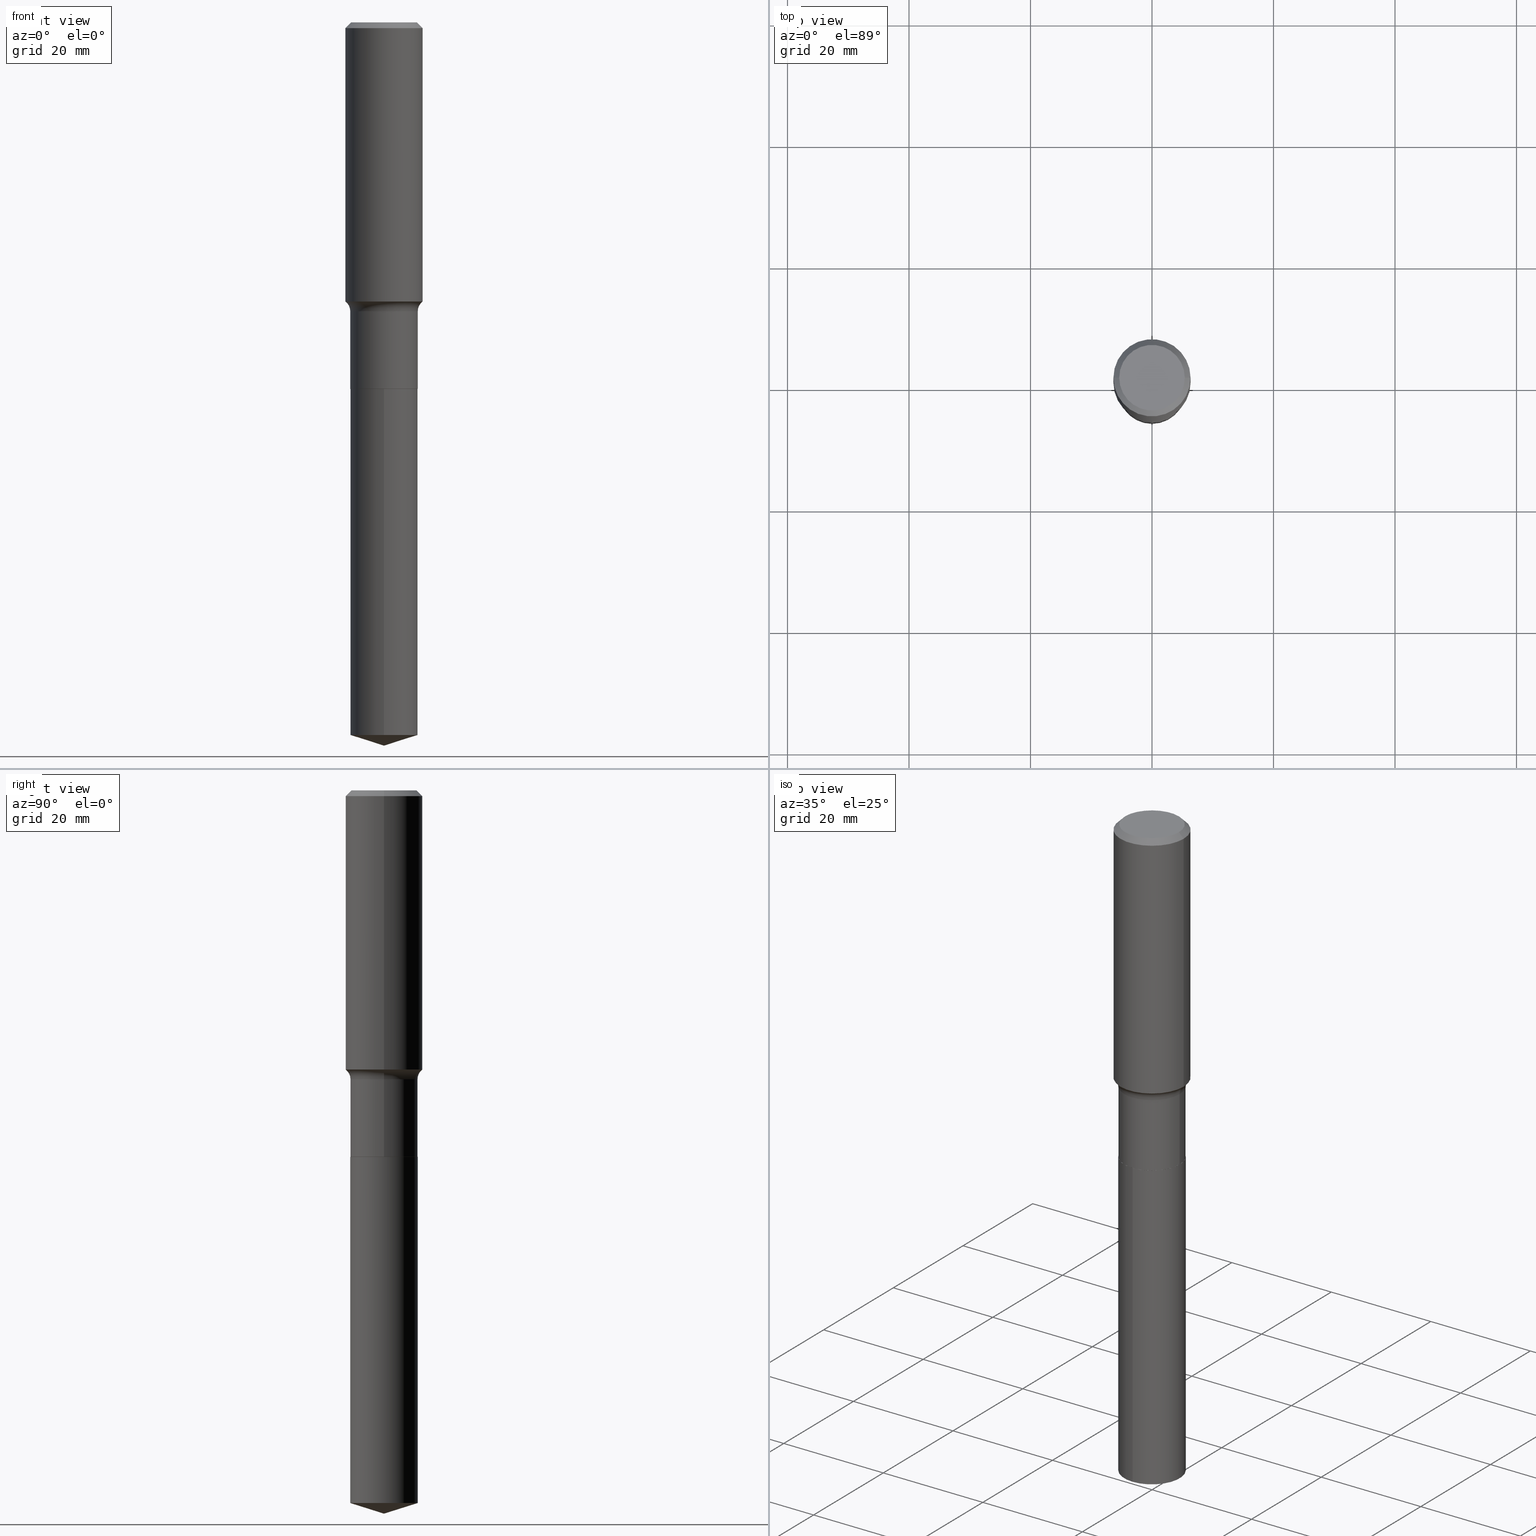
[diagram: canonical four-view strip — front | top / right | iso, engineering-drawing reading convention]
A machine part, canonical four-view strip (front | top / right | iso — engineering-drawing reading convention). The complete STEP part file that produces these views, byte-faithful:
ISO-10303-21;
HEADER;
FILE_DESCRIPTION (( 'STEP AP203' ),
    '1' );
FILE_NAME ('51530.STEP',
    '2024-04-19T12:58:54',
    ( '' ),
    ( '' ),
    'SwSTEP 2.0',
    'SolidWorks 2023',
    '' );
FILE_SCHEMA (( 'CONFIG_CONTROL_DESIGN' ));
ENDSEC;

DATA;
#1 = VERTEX_POINT ( 'NONE', #12 ) ;
#2 = SECURITY_CLASSIFICATION_LEVEL ( 'unclassified' ) ;
#3 = CARTESIAN_POINT ( 'NONE',  ( 0.2182499999999999996, -9.816299784157498742E-15, -2.375000000000000000 ) ) ;
#4 = VECTOR ( 'NONE', #410, 39.37007874015748143 ) ;
#5 = CONICAL_SURFACE ( 'NONE', #194, 0.2500000000000000000, 0.7853981633974450594 ) ;
#6 = PERSON_AND_ORGANIZATION_ROLE ( 'design_supplier' ) ;
#7 = ORIENTED_EDGE ( 'NONE', *, *, #102, .T. ) ;
#8 = EDGE_LOOP ( 'NONE', ( #84, #147, #420, #81 ) ) ;
#9 = APPLICATION_PROTOCOL_DEFINITION ( 'international standard', 'config_control_design', 1994, #204 ) ;
#10 = AXIS2_PLACEMENT_3D ( 'NONE', #103, #63, #215 ) ;
#11 = ORIENTED_EDGE ( 'NONE', *, *, #15, .F. ) ;
#12 = CARTESIAN_POINT ( 'NONE',  ( -1.527523085743812467E-15, -0.2187500000000082989, -2.374999999999999556 ) ) ;
#13 = CARTESIAN_POINT ( 'NONE',  ( 0.2187499999999999445, -1.527523085743870449E-15, 1.066663669705360604E-29 ) ) ;
#14 = DIRECTION ( 'NONE',  ( -2.445468806185136597E-29, 3.491481338843145583E-15, 1.000000000000000000 ) ) ;
#15 = EDGE_CURVE ( 'NONE', #376, #310, #450, .T. ) ;
#16 = ORIENTED_EDGE ( 'NONE', *, *, #326, .T. ) ;
#17 = CIRCLE ( 'NONE', #80, 0.2124999999999999944 ) ;
#18 = DATE_AND_TIME ( #286, #33 ) ;
#19 = AXIS2_PLACEMENT_3D ( 'NONE', #106, #453, #449 ) ;
#20 = DIRECTION ( 'NONE',  ( -2.445468806185136597E-29, 3.491481338843145583E-15, 1.000000000000000000 ) ) ;
#21 = ORIENTED_EDGE ( 'NONE', *, *, #440, .F. ) ;
#22 = CARTESIAN_POINT ( 'NONE',  ( 5.807988414689700538E-29, -8.292268179752471696E-15, -2.375000000000000000 ) ) ;
#23 = LINE ( 'NONE', #364, #231 ) ;
#24 = CARTESIAN_POINT ( 'NONE',  ( 5.807988414689700538E-29, -8.292268179752471696E-15, -2.375000000000000000 ) ) ;
#25 = CLOSED_SHELL ( 'NONE', ( #234, #347, #217, #29, #222, #356, #319, #164, #174, #157, #247, #304 ) ) ;
#26 = FACE_OUTER_BOUND ( 'NONE', #237, .T. ) ;
#27 = LOCAL_TIME ( 8, 58, 54.00000000000000000, #249 ) ;
#28 = FACE_OUTER_BOUND ( 'NONE', #228, .T. ) ;
#29 = ADVANCED_FACE ( 'NONE', ( #276 ), #86, .F. ) ;
#30 = CARTESIAN_POINT ( 'NONE',  ( 5.807988414689700538E-29, -8.292268179752471696E-15, -2.375000000000000000 ) ) ;
#31 = EDGE_CURVE ( 'NONE', #131, #381, #129, .T. ) ;
#32 = CARTESIAN_POINT ( 'NONE',  ( 1.554312234475331569E-15, 0.2187499999999838463, -4.618528389932723854 ) ) ;
#33 = LOCAL_TIME ( 8, 58, 54.00000000000000000, #358 ) ;
#34 = UNCERTAINTY_MEASURE_WITH_UNIT (LENGTH_MEASURE( 1.000000000000000082E-05 ), #344, 'distance_accuracy_value', 'NONE');
#35 = PERSON_AND_ORGANIZATION_ROLE ( 'classification_officer' ) ;
#36 = EDGE_LOOP ( 'NONE', ( #418, #354, #123 ) ) ;
#37 = CALENDAR_DATE ( 2024, 19, 4 ) ;
#38 = FACE_OUTER_BOUND ( 'NONE', #357, .T. ) ;
#39 = ORIENTED_EDGE ( 'NONE', *, *, #195, .F. ) ;
#40 = DATE_AND_TIME ( #37, #100 ) ;
#41 = AXIS2_PLACEMENT_3D ( 'NONE', #490, #219, #460 ) ;
#42 = ORGANIZATION ( 'UNSPECIFIED', 'UNSPECIFIED', '' ) ;
#43 = ORIENTED_EDGE ( 'NONE', *, *, #115, .F. ) ;
#44 = DIRECTION ( 'NONE',  ( -2.445468806185136597E-29, 3.491481338843145583E-15, 1.000000000000000000 ) ) ;
#45 = ORIENTED_EDGE ( 'NONE', *, *, #425, .T. ) ;
#46 = VERTEX_POINT ( 'NONE', #352 ) ;
#47 = APPROVAL ( #133, 'UNSPECIFIED' ) ;
#48 = CIRCLE ( 'NONE', #360, 0.2187499999999999167 ) ;
#49 = CIRCLE ( 'NONE', #466, 0.2187500000000000000 ) ;
#50 = ORIENTED_EDGE ( 'NONE', *, *, #425, .F. ) ;
#51 = SHAPE_DEFINITION_REPRESENTATION ( #70, #441 ) ;
#52 = CARTESIAN_POINT ( 'NONE',  ( 5.806765680286607737E-29, -8.290522439083049403E-15, -2.374500000000000277 ) ) ;
#53 = ORIENTED_EDGE ( 'NONE', *, *, #348, .T. ) ;
#54 = CYLINDRICAL_SURFACE ( 'NONE', #72, 0.2500000000000001110 ) ;
#55 = CIRCLE ( 'NONE', #280, 0.2187500000000000000 ) ;
#56 = VERTEX_POINT ( 'NONE', #430 ) ;
#57 = CIRCLE ( 'NONE', #406, 0.2182499999999999996 ) ;
#58 = SECURITY_CLASSIFICATION ( '', '', #2 ) ;
#59 = CARTESIAN_POINT ( 'NONE',  ( 5.807988414689700538E-29, -8.292268179752471696E-15, -2.375000000000000000 ) ) ;
#60 = DIRECTION ( 'NONE',  ( -2.445468806185136597E-29, 3.491481338843145583E-15, 1.000000000000000000 ) ) ;
#61 = CARTESIAN_POINT ( 'NONE',  ( 0.2124999999999999944, -1.651955437087975937E-15, 6.505936120481282700E-18 ) ) ;
#62 = EDGE_CURVE ( 'NONE', #241, #310, #329, .T. ) ;
#63 = DIRECTION ( 'NONE',  ( -2.445327369194011898E-29, 3.491683884664529466E-15, 1.000000000000000000 ) ) ;
#64 = PERSON ( 'UNSPECIFIED', 'UNSPECIFIED', 'UNSPECIFIED', ('UNSPECIFIED'), ('UNSPECIFIED'), ('UNSPECIFIED') ) ;
#65 = CYLINDRICAL_SURFACE ( 'NONE', #10, 0.2187500000000000000 ) ;
#66 = DIRECTION ( 'NONE',  ( -2.445468806185136597E-29, 3.491481338843145583E-15, 1.000000000000000000 ) ) ;
#67 = EDGE_CURVE ( 'NONE', #46, #301, #209, .T. ) ;
#68 = APPROVAL_ROLE ( '' ) ;
#69 = DIRECTION ( 'NONE',  ( -6.982962677686265133E-15, -1.000000000000000000, 3.746534391310989557E-15 ) ) ;
#70 = PRODUCT_DEFINITION_SHAPE ( 'NONE', 'NONE',  #141 ) ;
#71 = LINE ( 'NONE', #303, #382 ) ;
#72 = AXIS2_PLACEMENT_3D ( 'NONE', #331, #134, #446 ) ;
#73 = CC_DESIGN_PERSON_AND_ORGANIZATION_ASSIGNMENT ( #182, #296, ( #488 ) ) ;
#74 = EDGE_CURVE ( 'NONE', #75, #127, #160, .T. ) ;
#75 = VERTEX_POINT ( 'NONE', #167 ) ;
#76 = FACE_OUTER_BOUND ( 'NONE', #36, .T. ) ;
#77 = ORIENTED_EDGE ( 'NONE', *, *, #345, .T. ) ;
#78 = DIRECTION ( 'NONE',  ( -2.445468806185136877E-29, 3.491481338843145188E-15, 1.000000000000000000 ) ) ;
#79 = ORIENTED_EDGE ( 'NONE', *, *, #110, .F. ) ;
#80 = AXIS2_PLACEMENT_3D ( 'NONE', #480, #90, #367 ) ;
#81 = ORIENTED_EDGE ( 'NONE', *, *, #62, .F. ) ;
#82 = ORIENTED_EDGE ( 'NONE', *, *, #203, .F. ) ;
#83 = DIRECTION ( 'NONE',  ( 1.000000000000000000, -6.982962677686266711E-15, 0.000000000000000000 ) ) ;
#84 = ORIENTED_EDGE ( 'NONE', *, *, #461, .F. ) ;
#85 = CARTESIAN_POINT ( 'NONE',  ( 5.807988414689700538E-29, -8.292268179752471696E-15, -2.375000000000000000 ) ) ;
#86 = TOROIDAL_SURFACE ( 'NONE', #300, 0.2967499999999999027, 0.07799999999999995826 ) ;
#87 = AXIS2_PLACEMENT_3D ( 'NONE', #472, #44, #394 ) ;
#88 = DIRECTION ( 'NONE',  ( -6.659769872151631300E-15, -0.9537169507482265995, 0.3007057995042744514 ) ) ;
#89 = EDGE_CURVE ( 'NONE', #301, #386, #443, .T. ) ;
#90 = DIRECTION ( 'NONE',  ( -2.445468806185136597E-29, 3.491481338843145583E-15, 1.000000000000000000 ) ) ;
#91 = ORIENTED_EDGE ( 'NONE', *, *, #388, .T. ) ;
#92 = DATE_AND_TIME ( #435, #27 ) ;
#93 = CARTESIAN_POINT ( 'NONE',  ( 0.000000000000000000, 0.000000000000000000, 0.000000000000000000 ) ) ;
#94 = CARTESIAN_POINT ( 'NONE',  ( 5.807988414689700538E-29, -8.292268179752471696E-15, -2.375000000000000000 ) ) ;
#95 = EDGE_CURVE ( 'NONE', #301, #1, #169, .T. ) ;
#96 = PERSON_AND_ORGANIZATION ( #64, #42 ) ;
#97 = CARTESIAN_POINT ( 'NONE',  ( -7.955031918821654702E-47, 1.135767727816384474E-32, 3.252968060235159383E-18 ) ) ;
#98 = AXIS2_PLACEMENT_3D ( 'NONE', #366, #330, #246 ) ;
#99 = DIRECTION ( 'NONE',  ( -2.445468806185136597E-29, 3.491481338843145583E-15, 1.000000000000000000 ) ) ;
#100 = LOCAL_TIME ( 8, 58, 54.00000000000000000, #419 ) ;
#101 = DIRECTION ( 'NONE',  ( 1.000000000000000000, -6.982962677686269077E-15, 0.000000000000000000 ) ) ;
#102 = EDGE_CURVE ( 'NONE', #454, #471, #368, .T. ) ;
#103 = CARTESIAN_POINT ( 'NONE',  ( 5.807988414689700538E-29, -8.292268179752471696E-15, -2.375000000000000000 ) ) ;
#104 = FACE_OUTER_BOUND ( 'NONE', #395, .T. ) ;
#105 = AXIS2_PLACEMENT_3D ( 'NONE', #452, #335, #267 ) ;
#106 = CARTESIAN_POINT ( 'NONE',  ( -8.480992311467952822E-28, 1.211010823119422879E-13, 34.68257874015748143 ) ) ;
#107 = APPROVAL_PERSON_ORGANIZATION ( #459, #120, #125 ) ;
#108 = CALENDAR_DATE ( 2024, 19, 4 ) ;
#109 = DIRECTION ( 'NONE',  ( -1.000000000000000000, 6.982962677686266711E-15, 0.000000000000000000 ) ) ;
#110 = EDGE_CURVE ( 'NONE', #263, #131, #23, .T. ) ;
#111 = DIRECTION ( 'NONE',  ( 1.000000000000000000, -6.982962677686266711E-15, 4.876176775795935232E-29 ) ) ;
#112 = EDGE_CURVE ( 'NONE', #226, #263, #17, .T. ) ;
#113 = ORIENTED_EDGE ( 'NONE', *, *, #483, .T. ) ;
#114 = DIRECTION ( 'NONE',  ( -2.445327369194012178E-29, 3.491683884664529466E-15, 1.000000000000000000 ) ) ;
#115 = EDGE_CURVE ( 'NONE', #226, #381, #181, .T. ) ;
#116 = VECTOR ( 'NONE', #88, 39.37007874015748143 ) ;
#117 = VECTOR ( 'NONE', #128, 39.37007874015748143 ) ;
#118 = ORIENTED_EDGE ( 'NONE', *, *, #447, .T. ) ;
#119 = ORIENTED_EDGE ( 'NONE', *, *, #277, .F. ) ;
#120 = APPROVAL ( #121, 'UNSPECIFIED' ) ;
#121 = APPROVAL_STATUS ( 'not_yet_approved' ) ;
#122 = LINE ( 'NONE', #236, #351 ) ;
#123 = ORIENTED_EDGE ( 'NONE', *, *, #412, .F. ) ;
#124 = ORIENTED_EDGE ( 'NONE', *, *, #447, .F. ) ;
#125 = APPROVAL_ROLE ( '' ) ;
#126 = DIRECTION ( 'NONE',  ( 2.445327369194011898E-29, -3.491683884664529466E-15, -1.000000000000000000 ) ) ;
#127 = VERTEX_POINT ( 'NONE', #323 ) ;
#128 = DIRECTION ( 'NONE',  ( -2.445468806185136877E-29, 3.491481338843145188E-15, 1.000000000000000000 ) ) ;
#129 = CIRCLE ( 'NONE', #239, 0.2500000000000000000 ) ;
#130 = CIRCLE ( 'NONE', #457, 0.2187500000000000000 ) ;
#131 = VERTEX_POINT ( 'NONE', #256 ) ;
#132 = EDGE_CURVE ( 'NONE', #310, #376, #48, .T. ) ;
#133 = APPROVAL_STATUS ( 'not_yet_approved' ) ;
#134 = DIRECTION ( 'NONE',  ( -2.445468806185136597E-29, 3.491481338843145583E-15, 1.000000000000000000 ) ) ;
#135 = VERTEX_POINT ( 'NONE', #439 ) ;
#136 = APPROVAL_DATE_TIME ( #92, #47 ) ;
#137 = FACE_OUTER_BOUND ( 'NONE', #244, .T. ) ;
#138 = CARTESIAN_POINT ( 'NONE',  ( 0.2967499999999999027, -8.607898092783884274E-15, -1.871900000000000341 ) ) ;
#139 = APPROVAL_ROLE ( '' ) ;
#140 = DIRECTION ( 'NONE',  ( 2.438088387897960049E-29, -3.491481338843145188E-15, -1.000000000000000000 ) ) ;
#141 = PRODUCT_DEFINITION ( 'UNKNOWN', '', #488, #415 ) ;
#142 = DIRECTION ( 'NONE',  ( -2.445468806185136597E-29, 3.491481338843145583E-15, 1.000000000000000000 ) ) ;
#143 = DIRECTION ( 'NONE',  ( -6.982962677686265922E-15, -1.000000000000000000, 3.500519750498711532E-15 ) ) ;
#144 = VECTOR ( 'NONE', #476, 39.37007874015748143 ) ;
#145 = CARTESIAN_POINT ( 'NONE',  ( 9.170508023194322494E-31, -1.309305502066188320E-16, -0.03750000000000024841 ) ) ;
#146 = AXIS2_PLACEMENT_3D ( 'NONE', #353, #279, #83 ) ;
#147 = ORIENTED_EDGE ( 'NONE', *, *, #195, .T. ) ;
#148 = COORDINATED_UNIVERSAL_TIME_OFFSET ( 5, 0, .BEHIND. ) ;
#149 = DIRECTION ( 'NONE',  ( -2.445468806185136597E-29, 3.491481338843145583E-15, 1.000000000000000000 ) ) ;
#150 = ORIENTED_EDGE ( 'NONE', *, *, #62, .T. ) ;
#151 = CARTESIAN_POINT ( 'NONE',  ( 0.2187499999999999167, -8.063227003924354650E-15, -1.871900000000000341 ) ) ;
#152 = AXIS2_PLACEMENT_3D ( 'NONE', #59, #173, #101 ) ;
#153 = LOCAL_TIME ( 8, 58, 54.00000000000000000, #148 ) ;
#154 = ORIENTED_EDGE ( 'NONE', *, *, #309, .T. ) ;
#155 = PERSON_AND_ORGANIZATION ( #64, #42 ) ;
#156 = EDGE_LOOP ( 'NONE', ( #39, #124, #150, #248 ) ) ;
#157 = ADVANCED_FACE ( 'NONE', ( #26 ), #397, .F. ) ;
#158 = ORIENTED_EDGE ( 'NONE', *, *, #31, .F. ) ;
#159 = PLANE ( 'NONE',  #161 ) ;
#160 = CIRCLE ( 'NONE', #475, 0.2187500000000000000 ) ;
#161 = AXIS2_PLACEMENT_3D ( 'NONE', #85, #126, #238 ) ;
#162 = DIRECTION ( 'NONE',  ( 1.000000000000000000, -6.982962677686268288E-15, 4.883557194083113462E-29 ) ) ;
#163 = CC_DESIGN_PERSON_AND_ORGANIZATION_ASSIGNMENT ( #155, #35, ( #58 ) ) ;
#164 = ADVANCED_FACE ( 'NONE', ( #180 ), #54, .T. ) ;
#165 = CARTESIAN_POINT ( 'NONE',  ( 1.146247204309693163E-28, -1.636726820936498446E-14, -4.687500000000000000 ) ) ;
#166 = DIRECTION ( 'NONE',  ( -2.445468806185136597E-29, 3.491481338843145583E-15, 1.000000000000000000 ) ) ;
#167 = CARTESIAN_POINT ( 'NONE',  ( -0.2187500000000000000, -5.858800944156548632E-15, -2.374500000000000277 ) ) ;
#168 = LOCAL_TIME ( 8, 58, 54.00000000000000000, #428 ) ;
#169 = LINE ( 'NONE', #315, #144 ) ;
#170 = DIRECTION ( 'NONE',  ( 1.000000000000000000, -6.982962677686269077E-15, 0.000000000000000000 ) ) ;
#171 = ORIENTED_EDGE ( 'NONE', *, *, #440, .T. ) ;
#172 = PERSON_AND_ORGANIZATION ( #64, #42 ) ;
#173 = DIRECTION ( 'NONE',  ( -2.445468806185136597E-29, 3.491481338843145583E-15, 1.000000000000000000 ) ) ;
#174 = ADVANCED_FACE ( 'NONE', ( #28 ), #272, .T. ) ;
#175 = DIRECTION ( 'NONE',  ( 0.7071067811865452413, -7.319954787623248157E-15, -0.7071067811865497932 ) ) ;
#176 = DIRECTION ( 'NONE',  ( -2.445468806185136597E-29, 3.491481338843145583E-15, 1.000000000000000000 ) ) ;
#177 = AXIS2_PLACEMENT_3D ( 'NONE', #403, #359, #289 ) ;
#178 = CC_DESIGN_PERSON_AND_ORGANIZATION_ASSIGNMENT ( #342, #424, ( #187 ) ) ;
#179 = AXIS2_PLACEMENT_3D ( 'NONE', #191, #66, #111 ) ;
#180 = FACE_OUTER_BOUND ( 'NONE', #362, .T. ) ;
#181 = LINE ( 'NONE', #484, #184 ) ;
#182 = PERSON_AND_ORGANIZATION ( #64, #42 ) ;
#183 = FACE_OUTER_BOUND ( 'NONE', #270, .T. ) ;
#184 = VECTOR ( 'NONE', #479, 39.37007874015748143 ) ;
#185 = CARTESIAN_POINT ( 'NONE',  ( 1.146314975992320593E-28, -1.636630611671340963E-14, -4.687500000000000000 ) ) ;
#186 = CC_DESIGN_DATE_AND_TIME_ASSIGNMENT ( #268, #260, ( #58 ) ) ;
#187 = PRODUCT ( '51530', '51530', '', ( #314 ) ) ;
#188 = LINE ( 'NONE', #227, #482 ) ;
#189 = ADVANCED_FACE ( 'NONE', ( #104 ), #201, .T. ) ;
#190 = ORIENTED_EDGE ( 'NONE', *, *, #31, .T. ) ;
#191 = CARTESIAN_POINT ( 'NONE',  ( 0.000000000000000000, 0.000000000000000000, 0.000000000000000000 ) ) ;
#192 = EDGE_LOOP ( 'NONE', ( #379, #235, #119, #469 ) ) ;
#193 = DIRECTION ( 'NONE',  ( 6.776566513254256560E-15, 0.9537169507482285979, 0.3007057995042677900 ) ) ;
#194 = AXIS2_PLACEMENT_3D ( 'NONE', #145, #377, #109 ) ;
#195 = EDGE_CURVE ( 'NONE', #135, #376, #390, .T. ) ;
#196 = ORIENTED_EDGE ( 'NONE', *, *, #336, .F. ) ;
#197 = DIRECTION ( 'NONE',  ( 1.000000000000000000, -6.982962677686268288E-15, 0.000000000000000000 ) ) ;
#198 = ORIENTED_EDGE ( 'NONE', *, *, #277, .T. ) ;
#199 = CARTESIAN_POINT ( 'NONE',  ( 4.424984176209189832E-29, -6.317704661304503817E-15, -1.809462531281289310 ) ) ;
#200 = ORIENTED_EDGE ( 'NONE', *, *, #309, .F. ) ;
#201 = CONICAL_SURFACE ( 'NONE', #220, 124.8659371009148060, 1.265363707695891016 ) ;
#202 = CIRCLE ( 'NONE', #146, 0.2500000000000000000 ) ;
#203 = EDGE_CURVE ( 'NONE', #471, #454, #57, .T. ) ;
#204 = APPLICATION_CONTEXT ( 'configuration controlled 3d designs of mechanical parts and assemblies' ) ;
#205 = CARTESIAN_POINT ( 'NONE',  ( 4.577673058297957768E-29, -6.535703918180485385E-15, -1.871900000000000341 ) ) ;
#206 = APPROVAL_DATE_TIME ( #423, #120 ) ;
#207 = LENGTH_MEASURE_WITH_UNIT ( LENGTH_MEASURE( 0.02539999999999999897 ), #269 );
#208 = DIRECTION ( 'NONE',  ( 1.000000000000000000, -6.982962677686262766E-15, 0.000000000000000000 ) ) ;
#209 = LINE ( 'NONE', #165, #116 ) ;
#210 = DIRECTION ( 'NONE',  ( -2.445327369194011898E-29, 3.491683884664529466E-15, 1.000000000000000000 ) ) ;
#211 = DIRECTION ( 'NONE',  ( 1.000000000000000000, -6.982962677686265922E-15, 0.000000000000000000 ) ) ;
#212 = DIRECTION ( 'NONE',  ( 1.000000000000000000, -6.982962677686265922E-15, 0.000000000000000000 ) ) ;
#213 = DIRECTION ( 'NONE',  ( 1.000000000000000000, -6.982962677686269077E-15, 0.000000000000000000 ) ) ;
#214 = CARTESIAN_POINT ( 'NONE',  ( 5.807988414689700538E-29, -8.292268179752471696E-15, -2.375000000000000000 ) ) ;
#215 = DIRECTION ( 'NONE',  ( -6.982962677686265133E-15, -1.000000000000000000, 3.746534391310989557E-15 ) ) ;
#216 = CARTESIAN_POINT ( 'NONE',  ( -8.480992311467952822E-28, 1.211010823119422879E-13, 34.68257874015748143 ) ) ;
#217 = ADVANCED_FACE ( 'NONE', ( #284 ), #404, .T. ) ;
#218 = LINE ( 'NONE', #3, #4 ) ;
#219 = DIRECTION ( 'NONE',  ( -2.445468806185136597E-29, 3.491481338843145583E-15, 1.000000000000000000 ) ) ;
#220 = AXIS2_PLACEMENT_3D ( 'NONE', #216, #210, #143 ) ;
#221 = CC_DESIGN_APPROVAL ( #120, ( #58 ) ) ;
#222 = ADVANCED_FACE ( 'NONE', ( #477 ), #325, .T. ) ;
#223 = DIRECTION ( 'NONE',  ( -2.445468806185136877E-29, 3.491481338843145188E-15, 1.000000000000000000 ) ) ;
#224 = ORIENTED_EDGE ( 'NONE', *, *, #74, .T. ) ;
#225 = DIRECTION ( 'NONE',  ( -2.445468806185136877E-29, 3.491481338843145188E-15, 1.000000000000000000 ) ) ;
#226 = VERTEX_POINT ( 'NONE', #448 ) ;
#227 = CARTESIAN_POINT ( 'NONE',  ( 0.2500000000000001110, -1.745740669421567467E-15, 1.219044193948984509E-29 ) ) ;
#228 = EDGE_LOOP ( 'NONE', ( #79, #312, #274, #285 ) ) ;
#229 = APPROVAL_DATE_TIME ( #40, #243 ) ;
#230 = DIRECTION ( 'NONE',  ( 1.000000000000000000, -6.982962677686268288E-15, 0.000000000000000000 ) ) ;
#231 = VECTOR ( 'NONE', #175, 39.37007874015748143 ) ;
#232 = AXIS2_PLACEMENT_3D ( 'NONE', #275, #385, #308 ) ;
#233 = EDGE_LOOP ( 'NONE', ( #91, #398, #346, #21 ) ) ;
#234 = ADVANCED_FACE ( 'NONE', ( #137 ), #258, .T. ) ;
#235 = ORIENTED_EDGE ( 'NONE', *, *, #392, .T. ) ;
#236 = CARTESIAN_POINT ( 'NONE',  ( -0.2182499999999999996, -6.741508658956053437E-15, -2.375000000000000000 ) ) ;
#237 = EDGE_LOOP ( 'NONE', ( #393, #45 ) ) ;
#238 = DIRECTION ( 'NONE',  ( 6.982962677686265922E-15, 1.000000000000000000, -3.491683884664529466E-15 ) ) ;
#239 = AXIS2_PLACEMENT_3D ( 'NONE', #478, #14, #278 ) ;
#240 = VECTOR ( 'NONE', #225, 39.37007874015748143 ) ;
#241 = VERTEX_POINT ( 'NONE', #257 ) ;
#242 =( NAMED_UNIT ( * ) SI_UNIT ( $, .STERADIAN. ) SOLID_ANGLE_UNIT ( ) );
#243 = APPROVAL ( #261, 'UNSPECIFIED' ) ;
#244 = EDGE_LOOP ( 'NONE', ( #7, #113, #413, #200 ) ) ;
#245 = PERSON_AND_ORGANIZATION ( #64, #42 ) ;
#246 = DIRECTION ( 'NONE',  ( -1.000000000000000000, 6.982962677686266711E-15, 0.000000000000000000 ) ) ;
#247 = ADVANCED_FACE ( 'NONE', ( #287 ), #436, .F. ) ;
#248 = ORIENTED_EDGE ( 'NONE', *, *, #132, .T. ) ;
#249 = COORDINATED_UNIVERSAL_TIME_OFFSET ( 5, 0, .BEHIND. ) ;
#250 = CARTESIAN_POINT ( 'NONE',  ( 0.000000000000000000, 0.000000000000000000, 0.000000000000000000 ) ) ;
#251 = AXIS2_PLACEMENT_3D ( 'NONE', #250, #176, #292 ) ;
#252 = CC_DESIGN_SECURITY_CLASSIFICATION ( #58, ( #488 ) ) ;
#253 = DIRECTION ( 'NONE',  ( 1.000000000000000000, -6.982962677686274599E-15, 0.000000000000000000 ) ) ;
#254 = DIRECTION ( 'NONE',  ( 1.000000000000000000, -6.982962677686265922E-15, 4.876176775795935793E-29 ) ) ;
#255 = CC_DESIGN_PERSON_AND_ORGANIZATION_ASSIGNMENT ( #489, #6, ( #488 ) ) ;
#256 = CARTESIAN_POINT ( 'NONE',  ( 0.2500000000000000000, -1.876671219628185362E-15, -0.03750000000000024841 ) ) ;
#257 = CARTESIAN_POINT ( 'NONE',  ( 0.2500000000000001665, -8.063445330726071283E-15, -1.809462531281289310 ) ) ;
#258 = CONICAL_SURFACE ( 'NONE', #152, 0.2182499999999999996, 0.7853981633975507526 ) ;
#259 = CARTESIAN_POINT ( 'NONE',  ( -0.2187499999999999167, -5.858800944156548632E-15, -1.871900000000000341 ) ) ;
#260 = DATE_TIME_ROLE ( 'classification_date' ) ;
#261 = APPROVAL_STATUS ( 'not_yet_approved' ) ;
#262 = AXIS2_PLACEMENT_3D ( 'NONE', #97, #140, #371 ) ;
#263 = VERTEX_POINT ( 'NONE', #61 ) ;
#264 = CIRCLE ( 'NONE', #87, 0.2124999999999999944 ) ;
#265 = LINE ( 'NONE', #372, #240 ) ;
#266 = EDGE_LOOP ( 'NONE', ( #118, #317, #158, #343 ) ) ;
#267 = DIRECTION ( 'NONE',  ( 1.000000000000000000, -6.982962677686268288E-15, 4.883557194083113462E-29 ) ) ;
#268 = DATE_AND_TIME ( #108, #153 ) ;
#269 =( LENGTH_UNIT ( ) NAMED_UNIT ( * ) SI_UNIT ( $, .METRE. ) );
#270 = EDGE_LOOP ( 'NONE', ( #50, #458, #190, #43 ) ) ;
#271 = AXIS2_PLACEMENT_3D ( 'NONE', #93, #444, #400 ) ;
#272 = CONICAL_SURFACE ( 'NONE', #98, 0.2500000000000000000, 0.7853981633974450594 ) ;
#273 = AXIS2_PLACEMENT_3D ( 'NONE', #465, #166, #230 ) ;
#274 = ORIENTED_EDGE ( 'NONE', *, *, #115, .T. ) ;
#275 = CARTESIAN_POINT ( 'NONE',  ( 0.000000000000000000, 0.000000000000000000, 0.000000000000000000 ) ) ;
#276 = FACE_OUTER_BOUND ( 'NONE', #8, .T. ) ;
#277 = EDGE_CURVE ( 'NONE', #1, #56, #55, .T. ) ;
#278 = DIRECTION ( 'NONE',  ( 1.000000000000000000, -6.982962677686266711E-15, 0.000000000000000000 ) ) ;
#279 = DIRECTION ( 'NONE',  ( -2.445468806185136597E-29, 3.491481338843145583E-15, 1.000000000000000000 ) ) ;
#280 = AXIS2_PLACEMENT_3D ( 'NONE', #214, #481, #405 ) ;
#281 = CIRCLE ( 'NONE', #451, 0.2500000000000002220 ) ;
#282 = CARTESIAN_POINT ( 'NONE',  ( 4.577673058297957768E-29, -6.535703918180485385E-15, -1.871900000000000341 ) ) ;
#283 = ADVANCED_FACE ( 'NONE', ( #291 ), #65, .T. ) ;
#284 = FACE_OUTER_BOUND ( 'NONE', #266, .T. ) ;
#285 = ORIENTED_EDGE ( 'NONE', *, *, #470, .T. ) ;
#286 = CALENDAR_DATE ( 2024, 19, 4 ) ;
#287 = FACE_OUTER_BOUND ( 'NONE', #467, .T. ) ;
#288 = ORIENTED_EDGE ( 'NONE', *, *, #412, .T. ) ;
#289 = DIRECTION ( 'NONE',  ( -1.000000000000000000, 7.105427357601001859E-15, 0.000000000000000000 ) ) ;
#290 = APPROVAL_PERSON_ORGANIZATION ( #172, #47, #139 ) ;
#291 = FACE_OUTER_BOUND ( 'NONE', #192, .T. ) ;
#292 = DIRECTION ( 'NONE',  ( 1.000000000000000000, -6.982962677686266711E-15, 4.876176775795935232E-29 ) ) ;
#293 = DIRECTION ( 'NONE',  ( -2.445327369194011898E-29, 3.491683884664529466E-15, 1.000000000000000000 ) ) ;
#294 = AXIS2_PLACEMENT_3D ( 'NONE', #437, #349, #474 ) ;
#295 = FACE_OUTER_BOUND ( 'NONE', #156, .T. ) ;
#296 = PERSON_AND_ORGANIZATION_ROLE ( 'creator' ) ;
#297 = DIRECTION ( 'NONE',  ( -2.445327369194011898E-29, 3.491683884664529466E-15, 1.000000000000000000 ) ) ;
#298 = ORIENTED_EDGE ( 'NONE', *, *, #102, .F. ) ;
#299 = CARTESIAN_POINT ( 'NONE',  ( 1.554312234475276743E-15, 0.2187499999999917011, -2.375000000000000888 ) ) ;
#300 = AXIS2_PLACEMENT_3D ( 'NONE', #205, #99, #162 ) ;
#301 = VERTEX_POINT ( 'NONE', #334 ) ;
#302 = CC_DESIGN_APPROVAL ( #243, ( #488 ) ) ;
#303 = CARTESIAN_POINT ( 'NONE',  ( -0.2187499999999999445, 1.554312234475218762E-15, -1.076017050993260482E-29 ) ) ;
#304 = ADVANCED_FACE ( 'NONE', ( #333 ), #339, .T. ) ;
#305 = MANIFOLD_SOLID_BREP ( 'Body-Move/Copy2[2]', #25 ) ;
#306 = MANIFOLD_SOLID_BREP ( 'Body-Move/Copy2[1]', #487 ) ;
#307 = ORIENTED_EDGE ( 'NONE', *, *, #470, .F. ) ;
#308 = DIRECTION ( 'NONE',  ( 1.000000000000000000, 0.000000000000000000, 0.000000000000000000 ) ) ;
#309 = EDGE_CURVE ( 'NONE', #454, #127, #218, .T. ) ;
#310 = VERTEX_POINT ( 'NONE', #151 ) ;
#311 = LINE ( 'NONE', #13, #117 ) ;
#312 = ORIENTED_EDGE ( 'NONE', *, *, #112, .F. ) ;
#313 = AXIS2_PLACEMENT_3D ( 'NONE', #282, #324, #211 ) ;
#314 = MECHANICAL_CONTEXT ( 'NONE', #204, 'mechanical' ) ;
#315 = CARTESIAN_POINT ( 'NONE',  ( -1.527523085743812467E-15, -0.2187500000000082989, -2.374999999999999556 ) ) ;
#316 = DIRECTION ( 'NONE',  ( -2.445468806185136597E-29, 3.491481338843145583E-15, 1.000000000000000000 ) ) ;
#317 = ORIENTED_EDGE ( 'NONE', *, *, #402, .T. ) ;
#318 = DIRECTION ( 'NONE',  ( -6.982962677686265133E-15, -1.000000000000000000, 2.497689594207326371E-15 ) ) ;
#319 = ADVANCED_FACE ( 'NONE', ( #295 ), #320, .F. ) ;
#320 = TOROIDAL_SURFACE ( 'NONE', #105, 0.2967499999999999027, 0.07799999999999995826 ) ;
#321 = APPROVAL_PERSON_ORGANIZATION ( #96, #243, #68 ) ;
#322 = ORIENTED_EDGE ( 'NONE', *, *, #348, .F. ) ;
#323 = CARTESIAN_POINT ( 'NONE',  ( 0.2187500000000000000, -9.818045524826919457E-15, -2.374500000000000277 ) ) ;
#324 = DIRECTION ( 'NONE',  ( -2.445468806185136597E-29, 3.491481338843145583E-15, 1.000000000000000000 ) ) ;
#325 = CYLINDRICAL_SURFACE ( 'NONE', #251, 0.2187499999999999445 ) ;
#326 = EDGE_CURVE ( 'NONE', #46, #386, #417, .T. ) ;
#327 = DIRECTION ( 'NONE',  ( -2.445468806185136597E-29, 3.491481338843145583E-15, 1.000000000000000000 ) ) ;
#328 = CARTESIAN_POINT ( 'NONE',  ( 4.577673058297957768E-29, -6.535703918180485385E-15, -1.871900000000000341 ) ) ;
#329 = CIRCLE ( 'NONE', #456, 0.07799999999999995826 ) ;
#330 = DIRECTION ( 'NONE',  ( 2.445468806185136597E-29, -3.491481338843145583E-15, -1.000000000000000000 ) ) ;
#331 = CARTESIAN_POINT ( 'NONE',  ( 0.000000000000000000, 0.000000000000000000, 0.000000000000000000 ) ) ;
#332 = ADVANCED_FACE ( 'NONE', ( #38 ), #409, .T. ) ;
#333 = FACE_OUTER_BOUND ( 'NONE', #464, .T. ) ;
#334 = CARTESIAN_POINT ( 'NONE',  ( -1.527523085743757444E-15, -0.2187500000000160705, -4.618528389932722966 ) ) ;
#335 = DIRECTION ( 'NONE',  ( -2.445468806185136597E-29, 3.491481338843145583E-15, 1.000000000000000000 ) ) ;
#336 = EDGE_CURVE ( 'NONE', #75, #376, #71, .T. ) ;
#337 = ORIENTED_EDGE ( 'NONE', *, *, #74, .F. ) ;
#338 = FACE_OUTER_BOUND ( 'NONE', #340, .T. ) ;
#339 = CONICAL_SURFACE ( 'NONE', #41, 0.2182499999999999996, 0.7853981633975507526 ) ;
#340 = EDGE_LOOP ( 'NONE', ( #196, #224, #171, #11 ) ) ;
#341 = AXIS2_PLACEMENT_3D ( 'NONE', #30, #293, #69 ) ;
#342 = PERSON_AND_ORGANIZATION ( #64, #42 ) ;
#343 = ORIENTED_EDGE ( 'NONE', *, *, #345, .F. ) ;
#344 =( CONVERSION_BASED_UNIT ( 'INCH', #207 ) LENGTH_UNIT ( ) NAMED_UNIT ( #426 ) );
#345 = EDGE_CURVE ( 'NONE', #241, #131, #188, .T. ) ;
#346 = ORIENTED_EDGE ( 'NONE', *, *, #132, .F. ) ;
#347 = ADVANCED_FACE ( 'NONE', ( #183 ), #5, .T. ) ;
#348 = EDGE_CURVE ( 'NONE', #56, #1, #49, .T. ) ;
#349 = DIRECTION ( 'NONE',  ( -2.445327369194011898E-29, 3.491683884664529466E-15, 1.000000000000000000 ) ) ;
#350 = AXIS2_PLACEMENT_3D ( 'NONE', #94, #327, #213 ) ;
#351 = VECTOR ( 'NONE', #432, 39.37007874015748143 ) ;
#352 = CARTESIAN_POINT ( 'NONE',  ( 1.146247204309693163E-28, -1.636726820936498446E-14, -4.687500000000000000 ) ) ;
#353 = CARTESIAN_POINT ( 'NONE',  ( 9.170508023194322494E-31, -1.309305502066188320E-16, -0.03750000000000024841 ) ) ;
#354 = ORIENTED_EDGE ( 'NONE', *, *, #67, .T. ) ;
#355 = APPLICATION_PROTOCOL_DEFINITION ( 'international standard', 'config_control_design', 1994, #399 ) ;
#356 = ADVANCED_FACE ( 'NONE', ( #338 ), #414, .T. ) ;
#357 = EDGE_LOOP ( 'NONE', ( #416, #288, #389, #322 ) ) ;
#358 = COORDINATED_UNIVERSAL_TIME_OFFSET ( 5, 0, .BEHIND. ) ;
#359 = DIRECTION ( 'NONE',  ( 7.105427357601001859E-15, 1.000000000000000000, -3.491481338843145583E-15 ) ) ;
#360 = AXIS2_PLACEMENT_3D ( 'NONE', #328, #142, #212 ) ;
#361 = CIRCLE ( 'NONE', #273, 0.2500000000000002220 ) ;
#362 = EDGE_LOOP ( 'NONE', ( #491, #401, #77, #307 ) ) ;
#363 = DIRECTION ( 'NONE',  ( -2.438088387897960049E-29, 3.491481338843145188E-15, 1.000000000000000000 ) ) ;
#364 = CARTESIAN_POINT ( 'NONE',  ( 0.2500000000000000000, -1.846055049649501575E-15, -0.03750000000000024841 ) ) ;
#365 = ADVANCED_FACE ( 'NONE', ( #76 ), #433, .T. ) ;
#366 = CARTESIAN_POINT ( 'NONE',  ( 9.170508023194322494E-31, -1.309305502066188320E-16, -0.03750000000000024841 ) ) ;
#367 = DIRECTION ( 'NONE',  ( 1.000000000000000000, -6.982962677686266711E-15, 4.876376119033268190E-29 ) ) ;
#368 = CIRCLE ( 'NONE', #350, 0.2182499999999999996 ) ;
#369 = PRODUCT_RELATED_PRODUCT_CATEGORY ( 'detail', '', ( #187 ) ) ;
#370 = AXIS2_PLACEMENT_3D ( 'NONE', #486, #463, #318 ) ;
#371 = DIRECTION ( 'NONE',  ( -1.000000000000000000, 6.982962677686265922E-15, -4.876176775795935793E-29 ) ) ;
#372 = CARTESIAN_POINT ( 'NONE',  ( -0.2500000000000001110, 1.776356839400251254E-15, -1.229733772563727006E-29 ) ) ;
#373 = CARTESIAN_POINT ( 'NONE',  ( -0.2500000000000000000, -1.447960766355309800E-15, -0.03750000000000024841 ) ) ;
#374 = CIRCLE ( 'NONE', #370, 0.2187500000000000000 ) ;
#375 = CARTESIAN_POINT ( 'NONE',  ( 5.806765680286607737E-29, -8.290522439083049403E-15, -2.374500000000000277 ) ) ;
#376 = VERTEX_POINT ( 'NONE', #259 ) ;
#377 = DIRECTION ( 'NONE',  ( 2.445468806185136597E-29, -3.491481338843145583E-15, -1.000000000000000000 ) ) ;
#378 = CC_DESIGN_DATE_AND_TIME_ASSIGNMENT ( #18, #438, ( #141 ) ) ;
#379 = ORIENTED_EDGE ( 'NONE', *, *, #89, .T. ) ;
#380 = VECTOR ( 'NONE', #193, 39.37007874015748143 ) ;
#381 = VERTEX_POINT ( 'NONE', #373 ) ;
#382 = VECTOR ( 'NONE', #78, 39.37007874015748143 ) ;
#383 = CARTESIAN_POINT ( 'NONE',  ( 0.2182499999999999996, -9.816299784157498742E-15, -2.375000000000000000 ) ) ;
#384 = ORIENTED_EDGE ( 'NONE', *, *, #89, .F. ) ;
#385 = DIRECTION ( 'NONE',  ( 0.000000000000000000, 0.000000000000000000, 1.000000000000000000 ) ) ;
#386 = VERTEX_POINT ( 'NONE', #32 ) ;
#387 = CARTESIAN_POINT ( 'NONE',  ( -0.2182499999999999996, -6.738859431781942236E-15, -2.375000000000000000 ) ) ;
#388 = EDGE_CURVE ( 'NONE', #127, #75, #130, .T. ) ;
#389 = ORIENTED_EDGE ( 'NONE', *, *, #95, .T. ) ;
#390 = CIRCLE ( 'NONE', #177, 0.07799999999999995826 ) ;
#391 = FACE_OUTER_BOUND ( 'NONE', #442, .T. ) ;
#392 = EDGE_CURVE ( 'NONE', #386, #56, #408, .T. ) ;
#393 = ORIENTED_EDGE ( 'NONE', *, *, #112, .T. ) ;
#394 = DIRECTION ( 'NONE',  ( 1.000000000000000000, -6.982962677686266711E-15, 4.876376119033268190E-29 ) ) ;
#395 = EDGE_LOOP ( 'NONE', ( #422, #16, #384 ) ) ;
#396 = PERSON_AND_ORGANIZATION_ROLE ( 'creator' ) ;
#397 = PLANE ( 'NONE',  #262 ) ;
#398 = ORIENTED_EDGE ( 'NONE', *, *, #336, .T. ) ;
#399 = APPLICATION_CONTEXT ( 'configuration controlled 3d designs of mechanical parts and assemblies' ) ;
#400 = DIRECTION ( 'NONE',  ( 1.000000000000000000, -6.982962677686266711E-15, 4.876176775795935793E-29 ) ) ;
#401 = ORIENTED_EDGE ( 'NONE', *, *, #461, .T. ) ;
#402 = EDGE_CURVE ( 'NONE', #135, #381, #265, .T. ) ;
#403 = CARTESIAN_POINT ( 'NONE',  ( -0.2967499999999999027, -4.427168349812388380E-15, -1.871900000000000341 ) ) ;
#404 = CYLINDRICAL_SURFACE ( 'NONE', #271, 0.2500000000000001110 ) ;
#405 = DIRECTION ( 'NONE',  ( -6.982962677686265133E-15, -1.000000000000000000, 3.746534391310989557E-15 ) ) ;
#406 = AXIS2_PLACEMENT_3D ( 'NONE', #22, #20, #170 ) ;
#407 =( GEOMETRIC_REPRESENTATION_CONTEXT ( 3 ) GLOBAL_UNCERTAINTY_ASSIGNED_CONTEXT ( ( #34 ) ) GLOBAL_UNIT_ASSIGNED_CONTEXT ( ( #344, #421, #242 ) ) REPRESENTATION_CONTEXT ( 'NONE', 'WORKASPACE' ) );
#408 = LINE ( 'NONE', #299, #411 ) ;
#409 = CYLINDRICAL_SURFACE ( 'NONE', #341, 0.2187500000000000000 ) ;
#410 = DIRECTION ( 'NONE',  ( 0.7071067811866199593, -2.468850131083015945E-15, 0.7071067811864750752 ) ) ;
#411 = VECTOR ( 'NONE', #114, 39.37007874015748143 ) ;
#412 = EDGE_CURVE ( 'NONE', #386, #301, #374, .T. ) ;
#413 = ORIENTED_EDGE ( 'NONE', *, *, #388, .F. ) ;
#414 = CYLINDRICAL_SURFACE ( 'NONE', #179, 0.2187499999999999445 ) ;
#415 = DESIGN_CONTEXT ( 'detailed design', #399, 'design' ) ;
#416 = ORIENTED_EDGE ( 'NONE', *, *, #392, .F. ) ;
#417 = LINE ( 'NONE', #185, #380 ) ;
#418 = ORIENTED_EDGE ( 'NONE', *, *, #326, .F. ) ;
#419 = COORDINATED_UNIVERSAL_TIME_OFFSET ( 5, 0, .BEHIND. ) ;
#420 = ORIENTED_EDGE ( 'NONE', *, *, #15, .T. ) ;
#421 =( NAMED_UNIT ( * ) PLANE_ANGLE_UNIT ( ) SI_UNIT ( $, .RADIAN. ) );
#422 = ORIENTED_EDGE ( 'NONE', *, *, #67, .F. ) ;
#423 = DATE_AND_TIME ( #468, #168 ) ;
#424 = PERSON_AND_ORGANIZATION_ROLE ( 'design_owner' ) ;
#425 = EDGE_CURVE ( 'NONE', #263, #226, #264, .T. ) ;
#426 = DIMENSIONAL_EXPONENTS ( 1.000000000000000000, 0.000000000000000000, 0.000000000000000000, 0.000000000000000000, 0.000000000000000000, 0.000000000000000000, 0.000000000000000000 ) ;
#427 = ORIENTED_EDGE ( 'NONE', *, *, #483, .F. ) ;
#428 = COORDINATED_UNIVERSAL_TIME_OFFSET ( 5, 0, .BEHIND. ) ;
#429 = ADVANCED_FACE ( 'NONE', ( #391 ), #159, .F. ) ;
#430 = CARTESIAN_POINT ( 'NONE',  ( 1.554312234475331964E-15, 0.2187499999999917011, -2.375000000000000888 ) ) ;
#431 = AXIS2_PLACEMENT_3D ( 'NONE', #24, #363, #254 ) ;
#432 = DIRECTION ( 'NONE',  ( -0.7071067811866199593, 7.493145998870616062E-15, 0.7071067811864750752 ) ) ;
#433 = CONICAL_SURFACE ( 'NONE', #19, 124.8659371009148060, 1.265363707695891016 ) ;
#434 = DIRECTION ( 'NONE',  ( -6.982962677686266711E-15, -1.000000000000000000, 3.491481338843145583E-15 ) ) ;
#435 = CALENDAR_DATE ( 2024, 19, 4 ) ;
#436 = PLANE ( 'NONE',  #431 ) ;
#437 = CARTESIAN_POINT ( 'NONE',  ( 1.129414979015596135E-28, -1.612596010366791747E-14, -4.618528389932722966 ) ) ;
#438 = DATE_TIME_ROLE ( 'creation_date' ) ;
#439 = CARTESIAN_POINT ( 'NONE',  ( -0.2500000000000001665, -4.541347821904251775E-15, -1.809462531281289310 ) ) ;
#440 = EDGE_CURVE ( 'NONE', #127, #310, #311, .T. ) ;
#441 = ADVANCED_BREP_SHAPE_REPRESENTATION ( '51530', ( #306, #305, #232 ), #407 ) ;
#442 = EDGE_LOOP ( 'NONE', ( #198, #53 ) ) ;
#443 = CIRCLE ( 'NONE', #294, 0.2187500000000000000 ) ;
#444 = DIRECTION ( 'NONE',  ( -2.445468806185136597E-29, 3.491481338843145583E-15, 1.000000000000000000 ) ) ;
#445 = CC_DESIGN_APPROVAL ( #47, ( #141 ) ) ;
#446 = DIRECTION ( 'NONE',  ( 1.000000000000000000, -6.982962677686266711E-15, 4.876176775795935793E-29 ) ) ;
#447 = EDGE_CURVE ( 'NONE', #241, #135, #281, .T. ) ;
#448 = CARTESIAN_POINT ( 'NONE',  ( -0.2124999999999999944, 1.549344844111639638E-15, 6.505936120459713055E-18 ) ) ;
#449 = DIRECTION ( 'NONE',  ( -6.982962677686265922E-15, -1.000000000000000000, 3.500519750498711532E-15 ) ) ;
#450 = CIRCLE ( 'NONE', #313, 0.2187499999999999167 ) ;
#451 = AXIS2_PLACEMENT_3D ( 'NONE', #199, #316, #197 ) ;
#452 = CARTESIAN_POINT ( 'NONE',  ( 4.577673058297957768E-29, -6.535703918180485385E-15, -1.871900000000000341 ) ) ;
#453 = DIRECTION ( 'NONE',  ( -2.445327369194011898E-29, 3.491683884664529466E-15, 1.000000000000000000 ) ) ;
#454 = VERTEX_POINT ( 'NONE', #383 ) ;
#455 = DIRECTION ( 'NONE',  ( -6.982962677686265133E-15, -1.000000000000000000, 3.746534391310989557E-15 ) ) ;
#456 = AXIS2_PLACEMENT_3D ( 'NONE', #138, #434, #253 ) ;
#457 = AXIS2_PLACEMENT_3D ( 'NONE', #375, #149, #485 ) ;
#458 = ORIENTED_EDGE ( 'NONE', *, *, #110, .T. ) ;
#459 = PERSON_AND_ORGANIZATION ( #64, #42 ) ;
#460 = DIRECTION ( 'NONE',  ( 1.000000000000000000, -6.982962677686269077E-15, 0.000000000000000000 ) ) ;
#461 = EDGE_CURVE ( 'NONE', #135, #241, #361, .T. ) ;
#462 = ORIENTED_EDGE ( 'NONE', *, *, #203, .T. ) ;
#463 = DIRECTION ( 'NONE',  ( -2.445327369194011898E-29, 3.491683884664529466E-15, 1.000000000000000000 ) ) ;
#464 = EDGE_LOOP ( 'NONE', ( #427, #462, #154, #337 ) ) ;
#465 = CARTESIAN_POINT ( 'NONE',  ( 4.424984176209189832E-29, -6.317704661304503817E-15, -1.809462531281289310 ) ) ;
#466 = AXIS2_PLACEMENT_3D ( 'NONE', #492, #297, #455 ) ;
#467 = EDGE_LOOP ( 'NONE', ( #298, #82 ) ) ;
#468 = CALENDAR_DATE ( 2024, 19, 4 ) ;
#469 = ORIENTED_EDGE ( 'NONE', *, *, #95, .F. ) ;
#470 = EDGE_CURVE ( 'NONE', #381, #131, #202, .T. ) ;
#471 = VERTEX_POINT ( 'NONE', #387 ) ;
#472 = CARTESIAN_POINT ( 'NONE',  ( -1.591006383764330940E-46, 2.271535455632768948E-32, 6.505936120470318766E-18 ) ) ;
#473 = CC_DESIGN_PERSON_AND_ORGANIZATION_ASSIGNMENT ( #245, #396, ( #141 ) ) ;
#474 = DIRECTION ( 'NONE',  ( -6.982962677686265133E-15, -1.000000000000000000, 2.497689594207326371E-15 ) ) ;
#475 = AXIS2_PLACEMENT_3D ( 'NONE', #52, #60, #208 ) ;
#476 = DIRECTION ( 'NONE',  ( -2.445327369194012178E-29, 3.491683884664529466E-15, 1.000000000000000000 ) ) ;
#477 = FACE_OUTER_BOUND ( 'NONE', #233, .T. ) ;
#478 = CARTESIAN_POINT ( 'NONE',  ( 9.170508023194322494E-31, -1.309305502066188320E-16, -0.03750000000000024841 ) ) ;
#479 = DIRECTION ( 'NONE',  ( -0.7071067811865452413, 2.468850131082233000E-15, -0.7071067811865497932 ) ) ;
#480 = CARTESIAN_POINT ( 'NONE',  ( -1.591006383764330940E-46, 2.271535455632768948E-32, 6.505936120470318766E-18 ) ) ;
#481 = DIRECTION ( 'NONE',  ( -2.445327369194011898E-29, 3.491683884664529466E-15, 1.000000000000000000 ) ) ;
#482 = VECTOR ( 'NONE', #223, 39.37007874015748143 ) ;
#483 = EDGE_CURVE ( 'NONE', #471, #75, #122, .T. ) ;
#484 = CARTESIAN_POINT ( 'NONE',  ( -0.2500000000000000000, 1.614810119214947994E-15, -0.03750000000000024841 ) ) ;
#485 = DIRECTION ( 'NONE',  ( 1.000000000000000000, -6.982962677686262766E-15, 0.000000000000000000 ) ) ;
#486 = CARTESIAN_POINT ( 'NONE',  ( 1.129414979015596135E-28, -1.612596010366791747E-14, -4.618528389932722966 ) ) ;
#487 = CLOSED_SHELL ( 'NONE', ( #283, #189, #365, #332, #429 ) ) ;
#488 = PRODUCT_DEFINITION_FORMATION_WITH_SPECIFIED_SOURCE ( 'ANY', '', #187, .NOT_KNOWN. ) ;
#489 = PERSON_AND_ORGANIZATION ( #64, #42 ) ;
#490 = CARTESIAN_POINT ( 'NONE',  ( 5.807988414689700538E-29, -8.292268179752471696E-15, -2.375000000000000000 ) ) ;
#491 = ORIENTED_EDGE ( 'NONE', *, *, #402, .F. ) ;
#492 = CARTESIAN_POINT ( 'NONE',  ( 5.807988414689700538E-29, -8.292268179752471696E-15, -2.375000000000000000 ) ) ;
ENDSEC;
END-ISO-10303-21;
